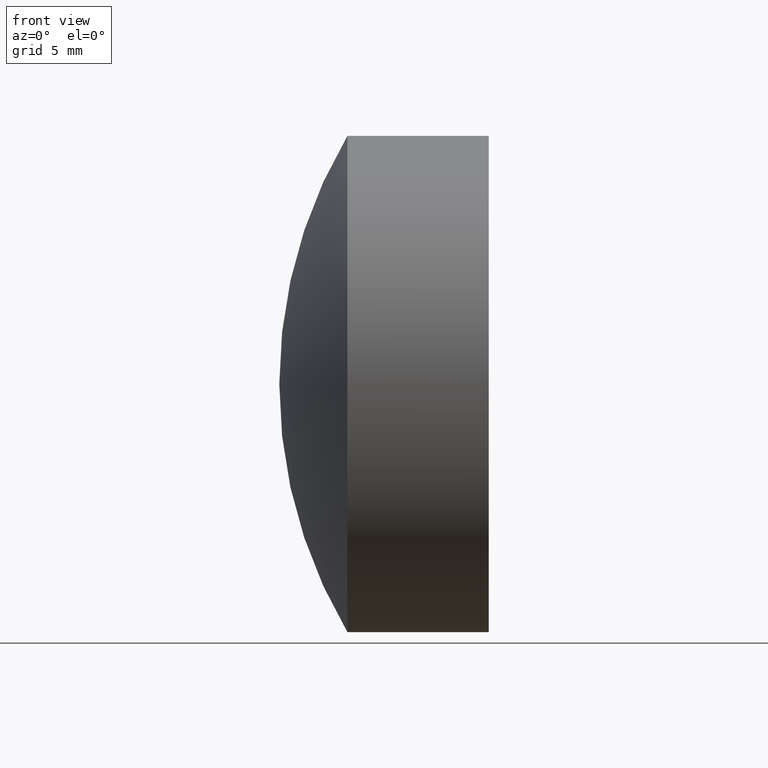
[diagram: clean part render]
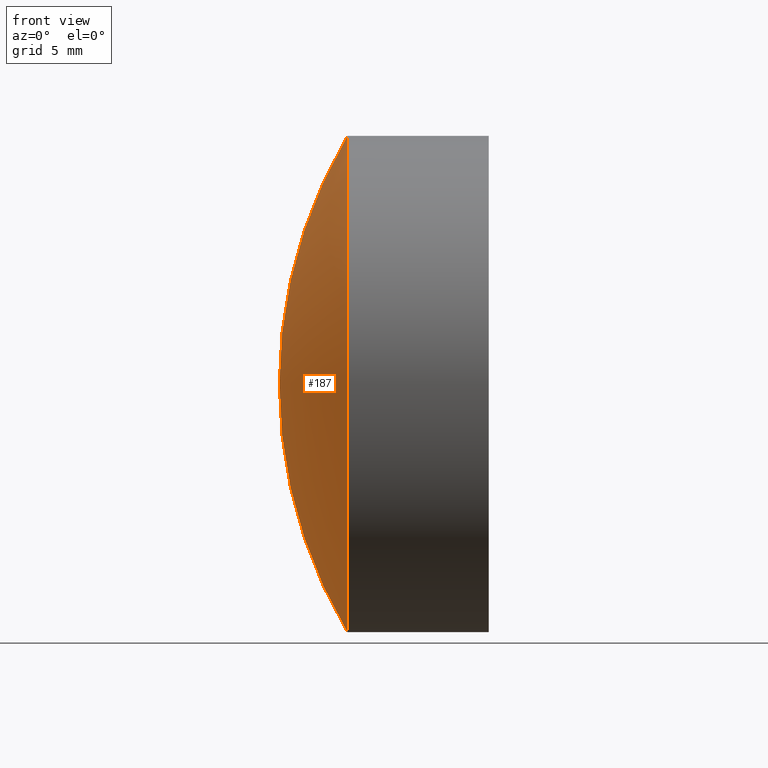
[diagram: same view with one face highlighted and labeled with its STEP entity id]
A machine part, front view. The second image highlights one B-rep face of the part: STEP entity #187.
In plain terms, the highlighted spherical surface has radius 29.38 mm.
Its self-contained STEP definition (entity closure, byte-faithful):
#40 = SPHERICAL_SURFACE ( 'NONE', #285, 29.38000000000000300 ) ;
#56 = DIRECTION ( 'NONE',  ( 0.0000000000000000000, -1.000000000000000000, 0.0000000000000000000 ) ) ;
#57 = AXIS2_PLACEMENT_3D ( 'NONE', #132, #232, #277 ) ;
#59 = CARTESIAN_POINT ( 'NONE',  ( 96.59065489886367600, 0.0000000000000000000, 14.99999999999999300 ) ) ;
#62 = CARTESIAN_POINT ( 'NONE',  ( 121.8529667487320600, 0.0000000000000000000, -2.769782849418513800E-015 ) ) ;
#70 = DIRECTION ( 'NONE',  ( 0.0000000000000000000, 0.0000000000000000000, 1.000000000000000000 ) ) ;
#78 = DIRECTION ( 'NONE',  ( 0.0000000000000000000, 1.000000000000000000, 0.0000000000000000000 ) ) ;
#102 = EDGE_CURVE ( 'NONE', #341, #179, #326, .T. ) ;
#103 = EDGE_CURVE ( 'NONE', #179, #119, #268, .T. ) ;
#110 = CARTESIAN_POINT ( 'NONE',  ( 96.59065489886367600, 1.836970198721028800E-015, -14.99999999999999600 ) ) ;
#119 = VERTEX_POINT ( 'NONE', #214 ) ;
#132 = CARTESIAN_POINT ( 'NONE',  ( 121.8529667487320600, 0.0000000000000000000, -2.769782849418513800E-015 ) ) ;
#148 = ORIENTED_EDGE ( 'NONE', *, *, #102, .T. ) ;
#170 = DIRECTION ( 'NONE',  ( 0.0000000000000000000, 0.0000000000000000000, -1.000000000000000000 ) ) ;
#171 = DIRECTION ( 'NONE',  ( -1.000000000000000000, -0.0000000000000000000, -0.0000000000000000000 ) ) ;
#172 = CARTESIAN_POINT ( 'NONE',  ( 96.59065489886367600, 0.0000000000000000000, 0.0000000000000000000 ) ) ;
#179 = VERTEX_POINT ( 'NONE', #59 ) ;
#187 = ADVANCED_FACE ( 'NONE', ( #296 ), #40, .T. ) ;
#189 = AXIS2_PLACEMENT_3D ( 'NONE', #172, #171, #251 ) ;
#209 = ORIENTED_EDGE ( 'NONE', *, *, #279, .F. ) ;
#214 = CARTESIAN_POINT ( 'NONE',  ( 92.47296674873204800, 0.0000000000000000000, -9.707767014710518100E-016 ) ) ;
#232 = DIRECTION ( 'NONE',  ( -0.0000000000000000000, 1.000000000000000000, 1.224646799147353200E-016 ) ) ;
#248 = EDGE_LOOP ( 'NONE', ( #209, #148, #266 ) ) ;
#251 = DIRECTION ( 'NONE',  ( 0.0000000000000000000, 0.0000000000000000000, 1.000000000000000000 ) ) ;
#264 = CARTESIAN_POINT ( 'NONE',  ( 121.8529667487320600, 0.0000000000000000000, -2.769782849418513800E-015 ) ) ;
#266 = ORIENTED_EDGE ( 'NONE', *, *, #103, .T. ) ;
#268 = CIRCLE ( 'NONE', #295, 29.38000000000000300 ) ;
#274 = CIRCLE ( 'NONE', #57, 29.38000000000000300 ) ;
#277 = DIRECTION ( 'NONE',  ( 0.0000000000000000000, -1.224646799147353200E-016, 1.000000000000000000 ) ) ;
#279 = EDGE_CURVE ( 'NONE', #341, #119, #274, .T. ) ;
#285 = AXIS2_PLACEMENT_3D ( 'NONE', #62, #78, #70 ) ;
#295 = AXIS2_PLACEMENT_3D ( 'NONE', #264, #56, #170 ) ;
#296 = FACE_OUTER_BOUND ( 'NONE', #248, .T. ) ;
#326 = CIRCLE ( 'NONE', #189, 14.99999999999999600 ) ;
#341 = VERTEX_POINT ( 'NONE', #110 ) ;